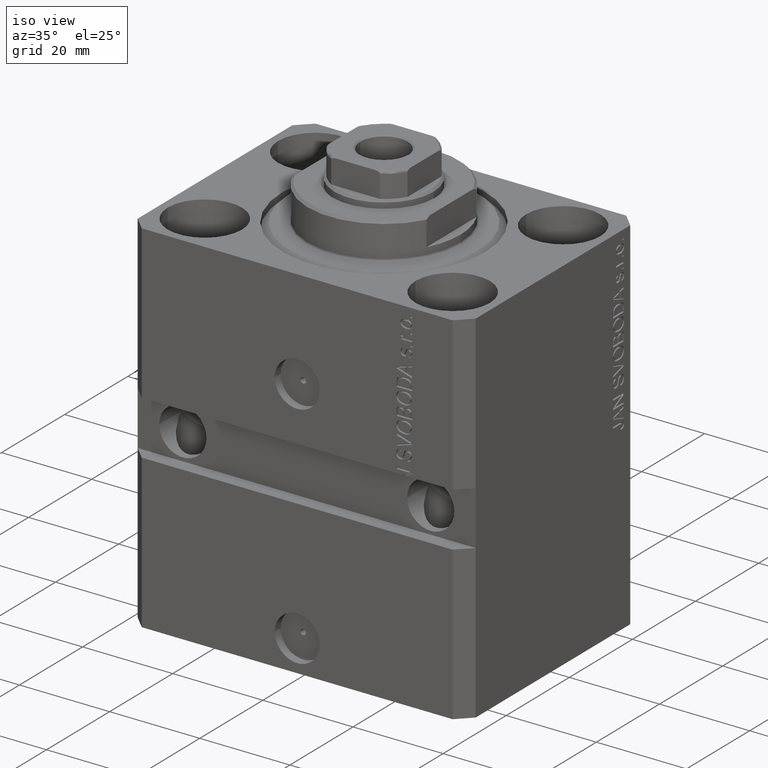
[diagram: clean part render]
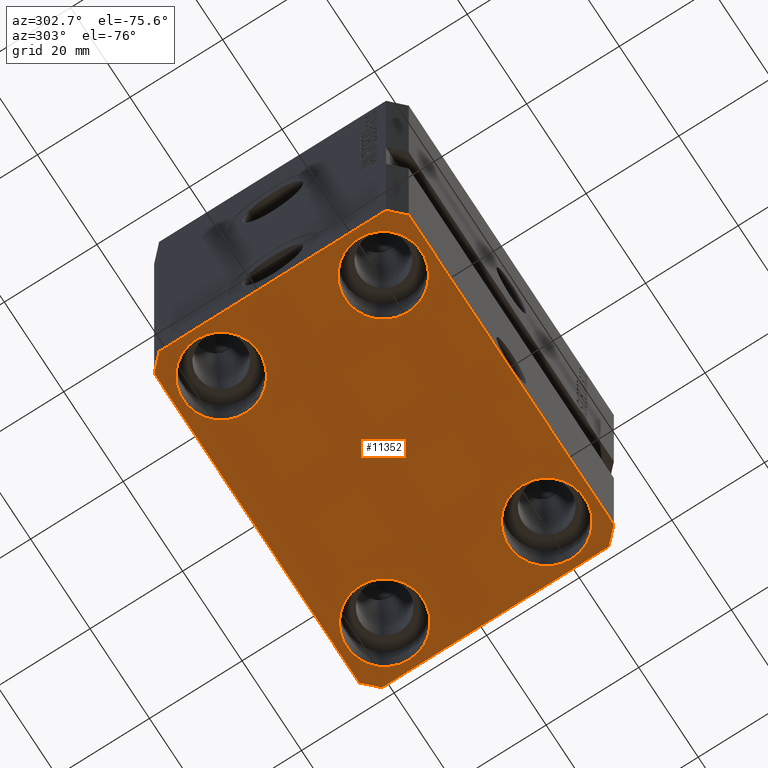
[diagram: tour spotlight — one face highlighted and labeled with its STEP entity id]
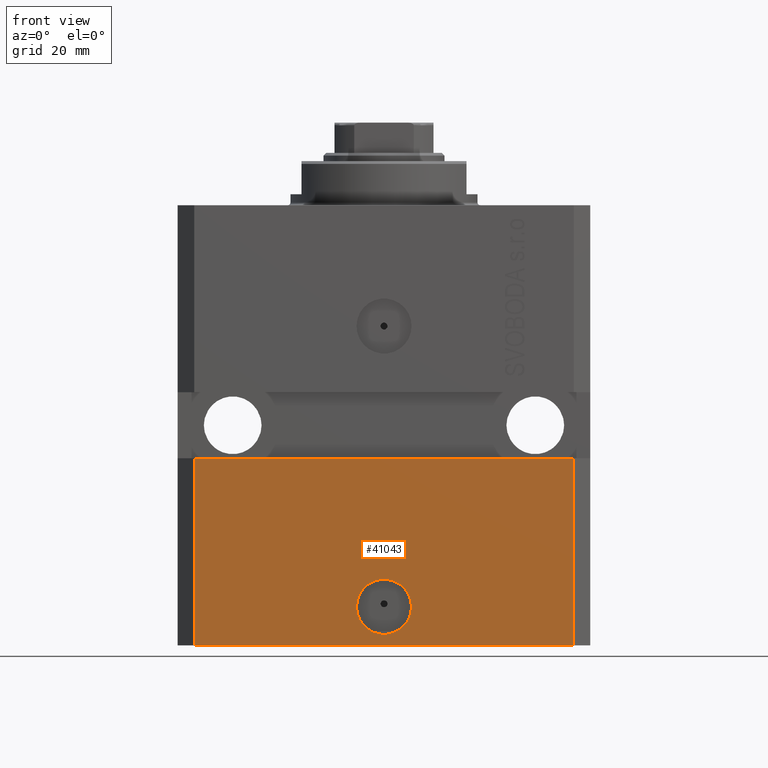
[diagram: tour spotlight — one face highlighted and labeled with its STEP entity id]
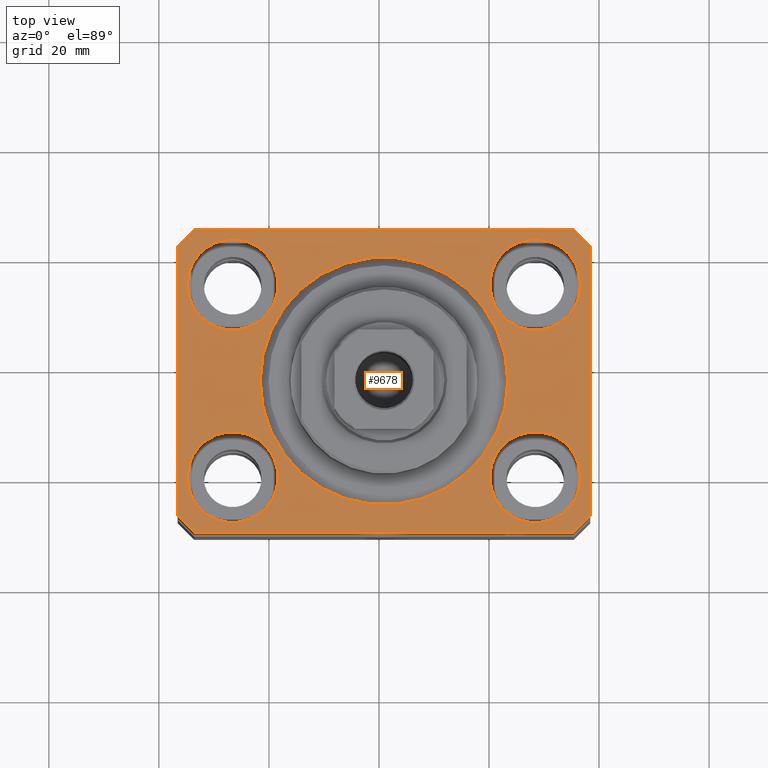
[diagram: tour spotlight — one face highlighted and labeled with its STEP entity id]
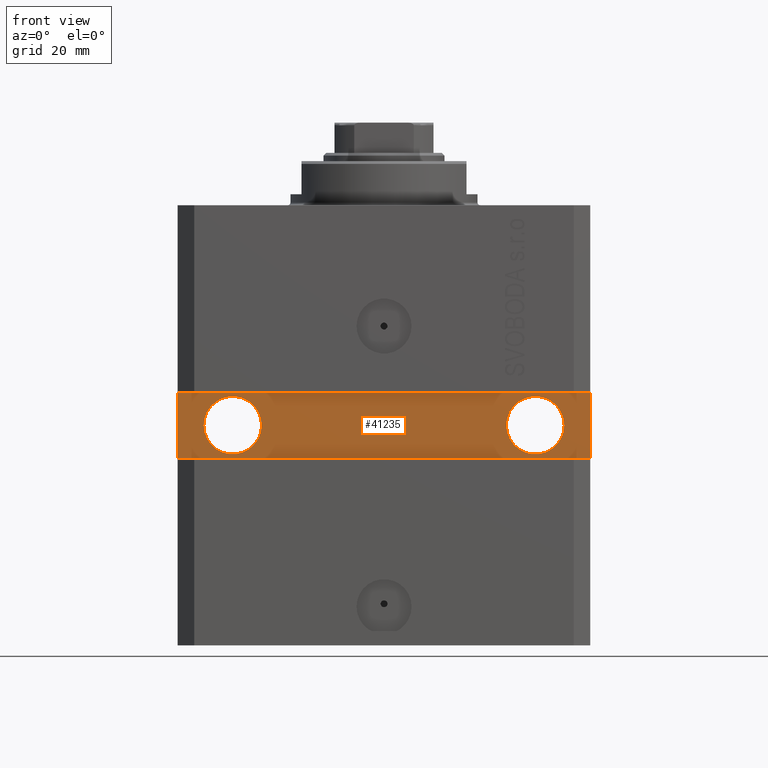
[diagram: tour spotlight — one face highlighted and labeled with its STEP entity id]
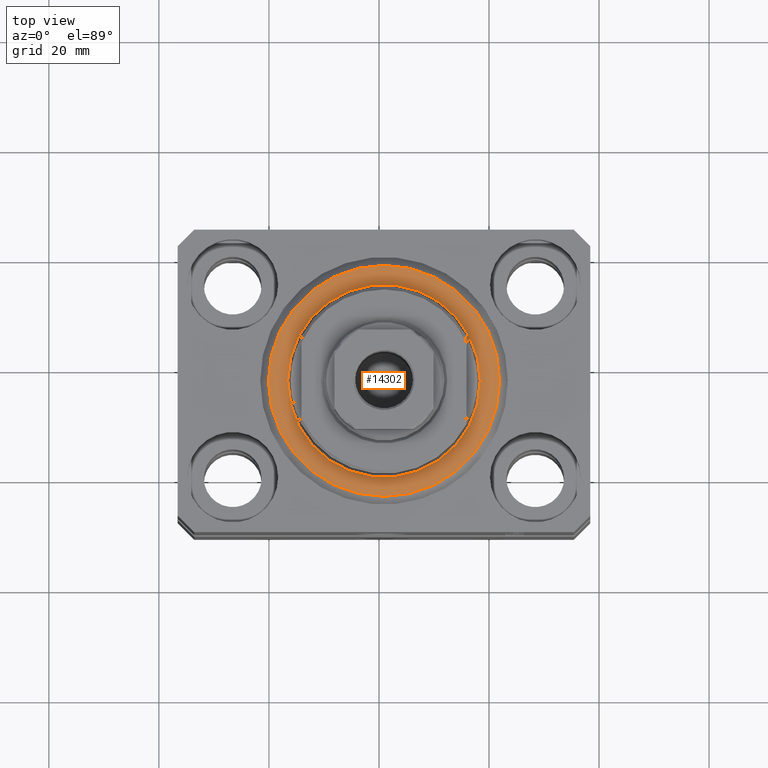
[diagram: tour spotlight — one face highlighted and labeled with its STEP entity id]
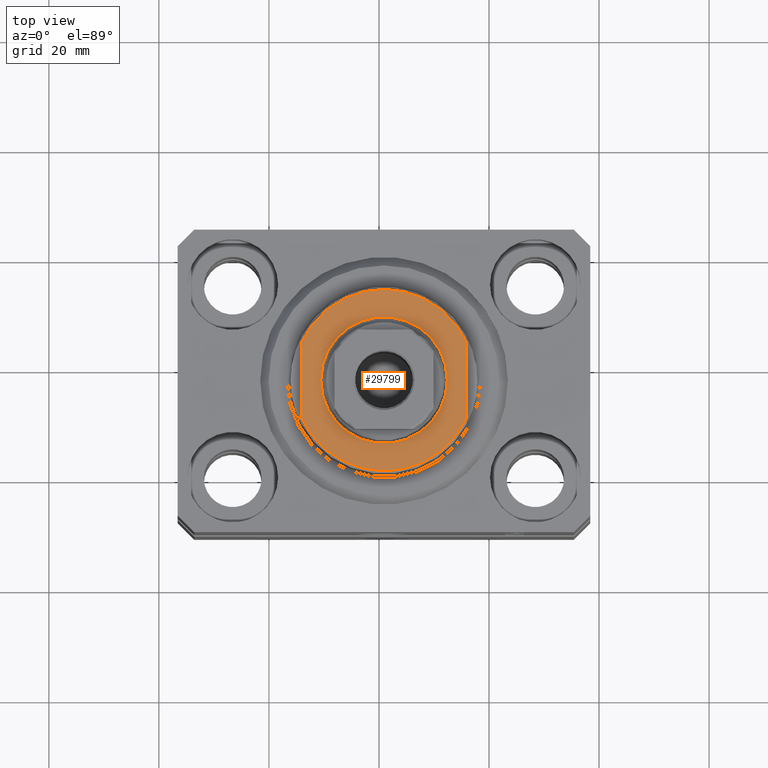
[diagram: tour spotlight — one face highlighted and labeled with its STEP entity id]
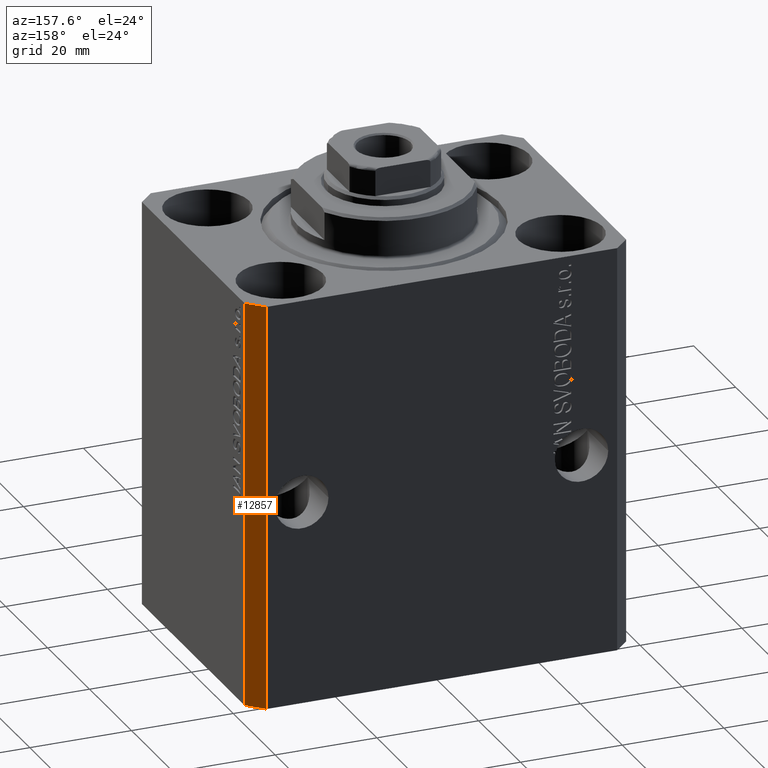
[diagram: tour spotlight — one face highlighted and labeled with its STEP entity id]
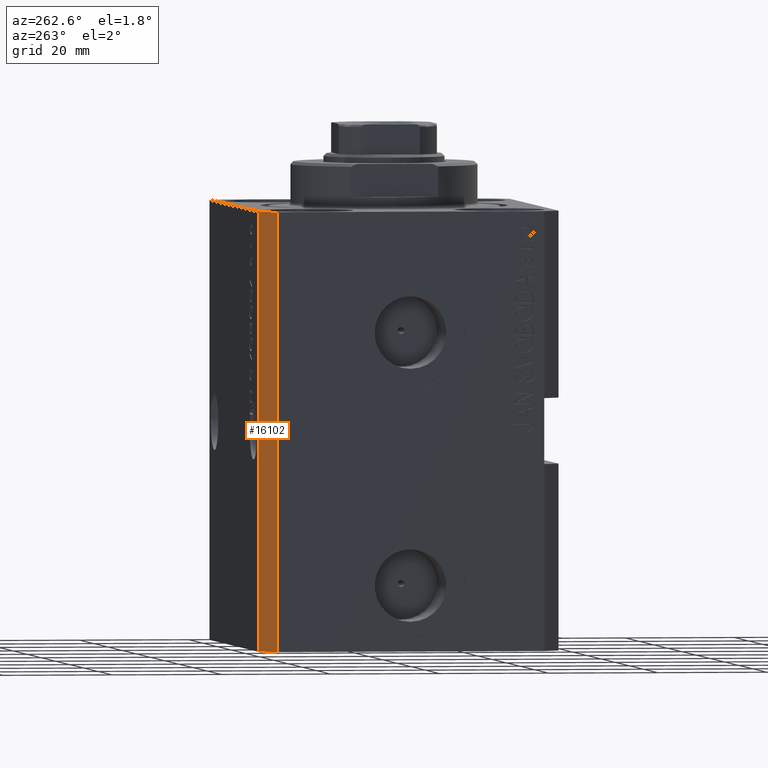
[diagram: tour spotlight — one face highlighted and labeled with its STEP entity id]
A machine part: a face-by-face anatomy tour. The part has 894 B-rep faces; the first image is the clean iso view, then the 8 largest visible faces are spotlighted one at a time (largest first), each with its STEP entity span.

Face 1 — auxiliary view, entity #11352. In plain terms, the highlighted planar face has unit normal (0, 0, 1).
Definition (entity closure, byte-faithful):
#912 = DIRECTION ( 'NONE',  ( 1.000000000000000000, 0.000000000000000000, 0.000000000000000000 ) ) ;
#1038 = EDGE_CURVE ( 'NONE', #40196, #28166, #25176, .T. ) ;
#1048 = CARTESIAN_POINT ( 'NONE',  ( -19.25000000000000355, 17.50000000000000000, -80.00000000000000000 ) ) ;
#1124 = EDGE_CURVE ( 'NONE', #9426, #14309, #36740, .T. ) ;
#1604 = VERTEX_POINT ( 'NONE', #6505 ) ;
#1882 = CARTESIAN_POINT ( 'NONE',  ( 34.50000000000056843, 27.50000000000000000, -80.00000000000000000 ) ) ;
#2239 = CIRCLE ( 'NONE', #35692, 8.250000000000000000 ) ;
#2894 = EDGE_CURVE ( 'NONE', #14309, #39526, #30340, .T. ) ;
#3250 = VECTOR ( 'NONE', #15137, 1000.000000000000114 ) ;
#3271 = DIRECTION ( 'NONE',  ( 0.000000000000000000, 0.000000000000000000, 1.000000000000000000 ) ) ;
#3274 = EDGE_CURVE ( 'NONE', #13441, #27636, #25348, .T. ) ;
#3916 = VERTEX_POINT ( 'NONE', #20252 ) ;
#4401 = CARTESIAN_POINT ( 'NONE',  ( 34.50000000000056843, 27.50000000000000000, -80.00000000000000000 ) ) ;
#5575 = AXIS2_PLACEMENT_3D ( 'NONE', #32922, #3271, #16191 ) ;
#5934 = DIRECTION ( 'NONE',  ( 1.000000000000000000, 0.000000000000000000, 0.000000000000000000 ) ) ;
#6265 = CARTESIAN_POINT ( 'NONE',  ( -35.75000000000000711, 17.50000000000000000, -80.00000000000000000 ) ) ;
#6505 = CARTESIAN_POINT ( 'NONE',  ( 35.74999999999999289, 17.50000000000001066, -80.00000000000000000 ) ) ;
#6524 = CARTESIAN_POINT ( 'NONE',  ( -37.49999999999999289, 24.50000000000000000, -80.00000000000000000 ) ) ;
#6675 = CARTESIAN_POINT ( 'NONE',  ( -34.49999999999999289, 27.50000000000000000, -80.00000000000000000 ) ) ;
#7126 = AXIS2_PLACEMENT_3D ( 'NONE', #36503, #26660, #36281 ) ;
#7306 = VERTEX_POINT ( 'NONE', #26712 ) ;
#7384 = DIRECTION ( 'NONE',  ( 1.000000000000000000, 0.000000000000000000, 0.000000000000000000 ) ) ;
#7541 = VECTOR ( 'NONE', #43960, 1000.000000000000000 ) ;
#7748 = DIRECTION ( 'NONE',  ( -1.000000000000000000, 0.000000000000000000, 0.000000000000000000 ) ) ;
#7929 = CIRCLE ( 'NONE', #37095, 8.250000000000000000 ) ;
#7966 = EDGE_CURVE ( 'NONE', #1604, #22406, #16843, .T. ) ;
#8564 = ORIENTED_EDGE ( 'NONE', *, *, #30275, .T. ) ;
#8633 = DIRECTION ( 'NONE',  ( 1.000000000000000000, 0.000000000000000000, 0.000000000000000000 ) ) ;
#8711 = CIRCLE ( 'NONE', #38522, 8.250000000000000000 ) ;
#9343 = DIRECTION ( 'NONE',  ( -0.7071067811865471286, -0.7071067811865479058, 0.000000000000000000 ) ) ;
#9426 = VERTEX_POINT ( 'NONE', #6675 ) ;
#9925 = ORIENTED_EDGE ( 'NONE', *, *, #29706, .F. ) ;
#10295 = CARTESIAN_POINT ( 'NONE',  ( -27.50000000000000355, 17.50000000000000000, -80.00000000000000000 ) ) ;
#10723 = LINE ( 'NONE', #24319, #26138 ) ;
#10901 = EDGE_LOOP ( 'NONE', ( #19018, #17932 ) ) ;
#11170 = DIRECTION ( 'NONE',  ( -0.000000000000000000, -0.000000000000000000, 1.000000000000000000 ) ) ;
#11352 = ADVANCED_FACE ( 'NONE', ( #16850, #26235, #30222, #15969, #22897 ), #37157, .F. ) ;
#11376 = CARTESIAN_POINT ( 'NONE',  ( 27.50000000000000355, -17.50000000000000000, -80.00000000000000000 ) ) ;
#11557 = VECTOR ( 'NONE', #7748, 1000.000000000000000 ) ;
#11636 = ORIENTED_EDGE ( 'NONE', *, *, #1038, .F. ) ;
#11706 = DIRECTION ( 'NONE',  ( -0.000000000000000000, -0.000000000000000000, 1.000000000000000000 ) ) ;
#13441 = VERTEX_POINT ( 'NONE', #1048 ) ;
#13483 = DIRECTION ( 'NONE',  ( -0.000000000000000000, -0.000000000000000000, 1.000000000000000000 ) ) ;
#14060 = DIRECTION ( 'NONE',  ( 1.000000000000000000, 0.000000000000000000, 0.000000000000000000 ) ) ;
#14309 = VERTEX_POINT ( 'NONE', #19758 ) ;
#14911 = VERTEX_POINT ( 'NONE', #41944 ) ;
#15046 = EDGE_CURVE ( 'NONE', #39526, #14911, #19384, .T. ) ;
#15069 = VECTOR ( 'NONE', #26544, 1000.000000000000000 ) ;
#15137 = DIRECTION ( 'NONE',  ( 0.7071067811865474617, 0.7071067811865474617, 0.000000000000000000 ) ) ;
#15969 = FACE_BOUND ( 'NONE', #39425, .T. ) ;
#16032 = CARTESIAN_POINT ( 'NONE',  ( -37.49999999999999289, -24.50000000000000000, -80.00000000000000000 ) ) ;
#16191 = DIRECTION ( 'NONE',  ( 1.000000000000000000, 0.000000000000000000, -0.000000000000000000 ) ) ;
#16807 = ORIENTED_EDGE ( 'NONE', *, *, #3274, .T. ) ;
#16843 = CIRCLE ( 'NONE', #26210, 8.249999999999992895 ) ;
#16850 = FACE_BOUND ( 'NONE', #30608, .T. ) ;
#16934 = VECTOR ( 'NONE', #19235, 1000.000000000000114 ) ;
#17932 = ORIENTED_EDGE ( 'NONE', *, *, #7966, .T. ) ;
#18408 = LINE ( 'NONE', #4401, #11557 ) ;
#18624 = ORIENTED_EDGE ( 'NONE', *, *, #36234, .F. ) ;
#19018 = ORIENTED_EDGE ( 'NONE', *, *, #40336, .T. ) ;
#19079 = DIRECTION ( 'NONE',  ( -0.000000000000000000, -0.000000000000000000, 1.000000000000000000 ) ) ;
#19235 = DIRECTION ( 'NONE',  ( -0.7071067811865356934, 0.7071067811865594521, 0.000000000000000000 ) ) ;
#19384 = LINE ( 'NONE', #16032, #31968 ) ;
#19639 = AXIS2_PLACEMENT_3D ( 'NONE', #33092, #39571, #5934 ) ;
#19758 = CARTESIAN_POINT ( 'NONE',  ( -37.49999999999999289, 24.50000000000000000, -80.00000000000000000 ) ) ;
#20046 = AXIS2_PLACEMENT_3D ( 'NONE', #10295, #30990, #14060 ) ;
#20169 = EDGE_CURVE ( 'NONE', #35650, #7306, #7929, .T. ) ;
#20252 = CARTESIAN_POINT ( 'NONE',  ( -35.75000000000000711, -17.50000000000000000, -80.00000000000000000 ) ) ;
#20384 = EDGE_CURVE ( 'NONE', #22810, #3916, #2239, .T. ) ;
#20892 = EDGE_CURVE ( 'NONE', #28166, #42765, #29665, .T. ) ;
#21180 = ORIENTED_EDGE ( 'NONE', *, *, #2894, .F. ) ;
#21582 = ORIENTED_EDGE ( 'NONE', *, *, #20892, .F. ) ;
#21871 = AXIS2_PLACEMENT_3D ( 'NONE', #30418, #13483, #27073 ) ;
#22001 = EDGE_CURVE ( 'NONE', #38963, #9426, #18408, .T. ) ;
#22406 = VERTEX_POINT ( 'NONE', #26371 ) ;
#22810 = VERTEX_POINT ( 'NONE', #22984 ) ;
#22897 = FACE_OUTER_BOUND ( 'NONE', #23746, .T. ) ;
#22984 = CARTESIAN_POINT ( 'NONE',  ( -19.25000000000000355, -17.50000000000000000, -80.00000000000000000 ) ) ;
#23342 = ORIENTED_EDGE ( 'NONE', *, *, #20169, .T. ) ;
#23582 = EDGE_CURVE ( 'NONE', #7306, #35650, #8711, .T. ) ;
#23746 = EDGE_LOOP ( 'NONE', ( #43711, #18624, #21582, #11636, #9925, #42712, #21180, #30760 ) ) ;
#24319 = CARTESIAN_POINT ( 'NONE',  ( -34.49999999999998579, -27.49999999999999645, -80.00000000000000000 ) ) ;
#25176 = LINE ( 'NONE', #38775, #3250 ) ;
#25348 = CIRCLE ( 'NONE', #19639, 8.250000000000000000 ) ;
#25440 = CIRCLE ( 'NONE', #21871, 8.250000000000000000 ) ;
#25681 = EDGE_CURVE ( 'NONE', #27636, #13441, #27891, .T. ) ;
#26046 = CARTESIAN_POINT ( 'NONE',  ( -34.49999999999999289, 27.50000000000000000, -80.00000000000000000 ) ) ;
#26138 = VECTOR ( 'NONE', #7384, 1000.000000000000000 ) ;
#26210 = AXIS2_PLACEMENT_3D ( 'NONE', #42370, #11170, #35463 ) ;
#26235 = FACE_BOUND ( 'NONE', #27305, .T. ) ;
#26371 = CARTESIAN_POINT ( 'NONE',  ( 19.25000000000000000, 17.50000000000001066, -80.00000000000000000 ) ) ;
#26544 = DIRECTION ( 'NONE',  ( 1.076236605503979380E-14, 1.000000000000000000, 0.000000000000000000 ) ) ;
#26660 = DIRECTION ( 'NONE',  ( -0.000000000000000000, -0.000000000000000000, 1.000000000000000000 ) ) ;
#26712 = CARTESIAN_POINT ( 'NONE',  ( 19.25000000000000000, -17.50000000000000000, -80.00000000000000000 ) ) ;
#27073 = DIRECTION ( 'NONE',  ( 1.000000000000000000, 0.000000000000000000, 0.000000000000000000 ) ) ;
#27305 = EDGE_LOOP ( 'NONE', ( #43759, #23342 ) ) ;
#27636 = VERTEX_POINT ( 'NONE', #6265 ) ;
#27891 = CIRCLE ( 'NONE', #20046, 8.250000000000000000 ) ;
#28143 = VECTOR ( 'NONE', #9343, 1000.000000000000000 ) ;
#28166 = VERTEX_POINT ( 'NONE', #39157 ) ;
#28562 = CARTESIAN_POINT ( 'NONE',  ( 35.75000000000000711, -17.50000000000000000, -80.00000000000000000 ) ) ;
#28810 = CARTESIAN_POINT ( 'NONE',  ( 37.50000000000051870, 24.49999999999995381, -80.00000000000000000 ) ) ;
#29665 = LINE ( 'NONE', #37247, #15069 ) ;
#29706 = EDGE_CURVE ( 'NONE', #14911, #40196, #10723, .T. ) ;
#29863 = DIRECTION ( 'NONE',  ( 0.7071067811865483499, -0.7071067811865466846, 0.000000000000000000 ) ) ;
#30222 = FACE_BOUND ( 'NONE', #10901, .T. ) ;
#30275 = EDGE_CURVE ( 'NONE', #3916, #22810, #25440, .T. ) ;
#30340 = LINE ( 'NONE', #6524, #7541 ) ;
#30418 = CARTESIAN_POINT ( 'NONE',  ( -27.50000000000000355, -17.50000000000000000, -80.00000000000000000 ) ) ;
#30608 = EDGE_LOOP ( 'NONE', ( #8564, #36125 ) ) ;
#30760 = ORIENTED_EDGE ( 'NONE', *, *, #1124, .F. ) ;
#30990 = DIRECTION ( 'NONE',  ( -0.000000000000000000, -0.000000000000000000, 1.000000000000000000 ) ) ;
#31968 = VECTOR ( 'NONE', #29863, 1000.000000000000000 ) ;
#32256 = CARTESIAN_POINT ( 'NONE',  ( 27.50000000000000355, -17.50000000000000000, -80.00000000000000000 ) ) ;
#32413 = CARTESIAN_POINT ( 'NONE',  ( -27.50000000000000355, -17.50000000000000000, -80.00000000000000000 ) ) ;
#32922 = CARTESIAN_POINT ( 'NONE',  ( 0.000000000000000000, 0.000000000000000000, -80.00000000000000000 ) ) ;
#33092 = CARTESIAN_POINT ( 'NONE',  ( -27.50000000000000355, 17.50000000000000000, -80.00000000000000000 ) ) ;
#35463 = DIRECTION ( 'NONE',  ( 1.000000000000000000, 0.000000000000000000, 0.000000000000000000 ) ) ;
#35650 = VERTEX_POINT ( 'NONE', #28562 ) ;
#35692 = AXIS2_PLACEMENT_3D ( 'NONE', #32413, #11706, #39774 ) ;
#35853 = ORIENTED_EDGE ( 'NONE', *, *, #25681, .T. ) ;
#36125 = ORIENTED_EDGE ( 'NONE', *, *, #20384, .T. ) ;
#36234 = EDGE_CURVE ( 'NONE', #42765, #38963, #39986, .T. ) ;
#36281 = DIRECTION ( 'NONE',  ( 1.000000000000000000, 0.000000000000000000, 0.000000000000000000 ) ) ;
#36503 = CARTESIAN_POINT ( 'NONE',  ( 27.49999999999999645, 17.50000000000001066, -80.00000000000000000 ) ) ;
#36518 = CARTESIAN_POINT ( 'NONE',  ( -37.49999999999999289, -24.50000000000000000, -80.00000000000000000 ) ) ;
#36740 = LINE ( 'NONE', #26046, #28143 ) ;
#37070 = CARTESIAN_POINT ( 'NONE',  ( 37.50000000000051870, 24.49999999999995381, -80.00000000000000000 ) ) ;
#37095 = AXIS2_PLACEMENT_3D ( 'NONE', #32256, #19079, #8633 ) ;
#37157 = PLANE ( 'NONE',  #5575 ) ;
#37247 = CARTESIAN_POINT ( 'NONE',  ( 37.49999999999999289, -24.50000000000000000, -80.00000000000000000 ) ) ;
#37676 = CARTESIAN_POINT ( 'NONE',  ( 34.49999999999999289, -27.49999999999999645, -80.00000000000000000 ) ) ;
#38522 = AXIS2_PLACEMENT_3D ( 'NONE', #11376, #41685, #912 ) ;
#38775 = CARTESIAN_POINT ( 'NONE',  ( 34.49999999999999289, -27.49999999999999645, -80.00000000000000000 ) ) ;
#38963 = VERTEX_POINT ( 'NONE', #1882 ) ;
#39157 = CARTESIAN_POINT ( 'NONE',  ( 37.49999999999999289, -24.50000000000000000, -80.00000000000000000 ) ) ;
#39425 = EDGE_LOOP ( 'NONE', ( #35853, #16807 ) ) ;
#39526 = VERTEX_POINT ( 'NONE', #36518 ) ;
#39571 = DIRECTION ( 'NONE',  ( -0.000000000000000000, -0.000000000000000000, 1.000000000000000000 ) ) ;
#39774 = DIRECTION ( 'NONE',  ( 1.000000000000000000, 0.000000000000000000, 0.000000000000000000 ) ) ;
#39861 = CIRCLE ( 'NONE', #7126, 8.249999999999992895 ) ;
#39986 = LINE ( 'NONE', #37070, #16934 ) ;
#40196 = VERTEX_POINT ( 'NONE', #37676 ) ;
#40336 = EDGE_CURVE ( 'NONE', #22406, #1604, #39861, .T. ) ;
#41685 = DIRECTION ( 'NONE',  ( -0.000000000000000000, -0.000000000000000000, 1.000000000000000000 ) ) ;
#41944 = CARTESIAN_POINT ( 'NONE',  ( -34.49999999999998579, -27.49999999999999645, -80.00000000000000000 ) ) ;
#42370 = CARTESIAN_POINT ( 'NONE',  ( 27.49999999999999645, 17.50000000000001066, -80.00000000000000000 ) ) ;
#42712 = ORIENTED_EDGE ( 'NONE', *, *, #15046, .F. ) ;
#42765 = VERTEX_POINT ( 'NONE', #28810 ) ;
#43711 = ORIENTED_EDGE ( 'NONE', *, *, #22001, .F. ) ;
#43759 = ORIENTED_EDGE ( 'NONE', *, *, #23582, .T. ) ;
#43960 = DIRECTION ( 'NONE',  ( 0.000000000000000000, -1.000000000000000000, 0.000000000000000000 ) ) ;

Face 2 — front view, entity #41043. In plain terms, the highlighted planar face has unit normal (0, -1, 0).
Definition (entity closure, byte-faithful):
#52 = CARTESIAN_POINT ( 'NONE',  ( -34.49999999999998579, -27.49999999999999645, -80.00000000000000000 ) ) ;
#406 = VERTEX_POINT ( 'NONE', #28410 ) ;
#3681 = LINE ( 'NONE', #10352, #31733 ) ;
#4916 = DIRECTION ( 'NONE',  ( 0.000000000000000000, -0.000000000000000000, -1.000000000000000000 ) ) ;
#5161 = ORIENTED_EDGE ( 'NONE', *, *, #26492, .F. ) ;
#6705 = VERTEX_POINT ( 'NONE', #9424 ) ;
#7384 = DIRECTION ( 'NONE',  ( 1.000000000000000000, 0.000000000000000000, 0.000000000000000000 ) ) ;
#7828 = AXIS2_PLACEMENT_3D ( 'NONE', #26376, #19677, #30371 ) ;
#8519 = DIRECTION ( 'NONE',  ( 1.000000000000000000, 0.000000000000000000, 0.000000000000000000 ) ) ;
#9424 = CARTESIAN_POINT ( 'NONE',  ( -5.000000000000006217, -27.49999999999999645, -73.00000000000000000 ) ) ;
#10352 = CARTESIAN_POINT ( 'NONE',  ( -37.50000000000000000, -27.50000000000000000, -46.00000000000000000 ) ) ;
#10723 = LINE ( 'NONE', #24319, #26138 ) ;
#11180 = EDGE_CURVE ( 'NONE', #14911, #24717, #26764, .T. ) ;
#12033 = CARTESIAN_POINT ( 'NONE',  ( 5.000000000000006217, -27.49999999999999645, -73.00000000000000000 ) ) ;
#12099 = CARTESIAN_POINT ( 'NONE',  ( -34.49999999999998579, -27.50000000000000000, -46.00000000000000000 ) ) ;
#12818 = DIRECTION ( 'NONE',  ( 1.000000000000000000, 9.251858538542972814E-17, 0.000000000000000000 ) ) ;
#13552 = LINE ( 'NONE', #17327, #22133 ) ;
#14911 = VERTEX_POINT ( 'NONE', #41944 ) ;
#16751 = EDGE_CURVE ( 'NONE', #21050, #6705, #22774, .T. ) ;
#16940 = VECTOR ( 'NONE', #27425, 1000.000000000000000 ) ;
#17327 = CARTESIAN_POINT ( 'NONE',  ( 34.49999999999999289, -27.49999999999999645, -80.00000000000000000 ) ) ;
#17436 = CARTESIAN_POINT ( 'NONE',  ( -34.49999999999998579, -27.49999999999999645, -80.00000000000000000 ) ) ;
#18479 = DIRECTION ( 'NONE',  ( 0.000000000000000000, -1.000000000000000000, 0.000000000000000000 ) ) ;
#18596 = CIRCLE ( 'NONE', #38525, 5.000000000000006217 ) ;
#19677 = DIRECTION ( 'NONE',  ( 1.176083712526788232E-16, -1.000000000000000000, 0.000000000000000000 ) ) ;
#19715 = EDGE_CURVE ( 'NONE', #6705, #21050, #18596, .T. ) ;
#19822 = EDGE_CURVE ( 'NONE', #40196, #406, #13552, .T. ) ;
#20436 = ORIENTED_EDGE ( 'NONE', *, *, #19822, .T. ) ;
#21050 = VERTEX_POINT ( 'NONE', #12033 ) ;
#21608 = FACE_BOUND ( 'NONE', #34981, .T. ) ;
#22133 = VECTOR ( 'NONE', #30920, 1000.000000000000000 ) ;
#22774 = CIRCLE ( 'NONE', #7828, 5.000000000000006217 ) ;
#23788 = ORIENTED_EDGE ( 'NONE', *, *, #11180, .F. ) ;
#24319 = CARTESIAN_POINT ( 'NONE',  ( -34.49999999999998579, -27.49999999999999645, -80.00000000000000000 ) ) ;
#24717 = VERTEX_POINT ( 'NONE', #12099 ) ;
#26138 = VECTOR ( 'NONE', #7384, 1000.000000000000000 ) ;
#26376 = CARTESIAN_POINT ( 'NONE',  ( 0.000000000000000000, -27.49999999999999645, -73.00000000000000000 ) ) ;
#26492 = EDGE_CURVE ( 'NONE', #24717, #406, #3681, .T. ) ;
#26764 = LINE ( 'NONE', #52, #16940 ) ;
#27425 = DIRECTION ( 'NONE',  ( 0.000000000000000000, 0.000000000000000000, 1.000000000000000000 ) ) ;
#27857 = ORIENTED_EDGE ( 'NONE', *, *, #29706, .T. ) ;
#28410 = CARTESIAN_POINT ( 'NONE',  ( 34.49999999999999289, -27.49999999999999289, -46.00000000000000000 ) ) ;
#28960 = PLANE ( 'NONE',  #33452 ) ;
#29012 = CARTESIAN_POINT ( 'NONE',  ( 0.000000000000000000, -27.49999999999999645, -73.00000000000000000 ) ) ;
#29706 = EDGE_CURVE ( 'NONE', #14911, #40196, #10723, .T. ) ;
#30371 = DIRECTION ( 'NONE',  ( 1.000000000000000000, 0.000000000000000000, 0.000000000000000000 ) ) ;
#30920 = DIRECTION ( 'NONE',  ( 0.000000000000000000, 0.000000000000000000, 1.000000000000000000 ) ) ;
#31733 = VECTOR ( 'NONE', #12818, 1000.000000000000000 ) ;
#33452 = AXIS2_PLACEMENT_3D ( 'NONE', #17436, #18479, #4916 ) ;
#34981 = EDGE_LOOP ( 'NONE', ( #35756, #41499 ) ) ;
#35756 = ORIENTED_EDGE ( 'NONE', *, *, #16751, .F. ) ;
#37676 = CARTESIAN_POINT ( 'NONE',  ( 34.49999999999999289, -27.49999999999999645, -80.00000000000000000 ) ) ;
#38525 = AXIS2_PLACEMENT_3D ( 'NONE', #29012, #43449, #8519 ) ;
#38702 = EDGE_LOOP ( 'NONE', ( #5161, #23788, #27857, #20436 ) ) ;
#39438 = FACE_OUTER_BOUND ( 'NONE', #38702, .T. ) ;
#40196 = VERTEX_POINT ( 'NONE', #37676 ) ;
#41043 = ADVANCED_FACE ( 'NONE', ( #21608, #39438 ), #28960, .T. ) ;
#41499 = ORIENTED_EDGE ( 'NONE', *, *, #19715, .F. ) ;
#41944 = CARTESIAN_POINT ( 'NONE',  ( -34.49999999999998579, -27.49999999999999645, -80.00000000000000000 ) ) ;
#43449 = DIRECTION ( 'NONE',  ( 1.176083712526788232E-16, -1.000000000000000000, 0.000000000000000000 ) ) ;

Face 3 — top view, entity #9678. In plain terms, the highlighted planar face has unit normal (0, 0, 1).
Definition (entity closure, byte-faithful):
#25 = VERTEX_POINT ( 'NONE', #6489 ) ;
#600 = DIRECTION ( 'NONE',  ( 1.000000000000000000, 0.000000000000000000, -0.000000000000000000 ) ) ;
#635 = DIRECTION ( 'NONE',  ( 0.000000000000000000, 0.000000000000000000, 1.000000000000000000 ) ) ;
#710 = AXIS2_PLACEMENT_3D ( 'NONE', #9993, #27565, #37389 ) ;
#888 = EDGE_LOOP ( 'NONE', ( #12291, #8013 ) ) ;
#889 = DIRECTION ( 'NONE',  ( 0.000000000000000000, 0.000000000000000000, 1.000000000000000000 ) ) ;
#1056 = VERTEX_POINT ( 'NONE', #24739 ) ;
#1079 = LINE ( 'NONE', #14644, #18290 ) ;
#1119 = CIRCLE ( 'NONE', #6817, 8.249999999999992895 ) ;
#1258 = CARTESIAN_POINT ( 'NONE',  ( -27.50000000000000355, -17.50000000000000000, 0.000000000000000000 ) ) ;
#1613 = EDGE_CURVE ( 'NONE', #20200, #27859, #1119, .T. ) ;
#1709 = CARTESIAN_POINT ( 'NONE',  ( 37.49999999999999289, -24.50000000000000000, 0.000000000000000000 ) ) ;
#2168 = CARTESIAN_POINT ( 'NONE',  ( -37.49999999999999289, -24.50000000000000000, 0.000000000000000000 ) ) ;
#2931 = ORIENTED_EDGE ( 'NONE', *, *, #41041, .T. ) ;
#2964 = VECTOR ( 'NONE', #37464, 1000.000000000000000 ) ;
#3235 = ORIENTED_EDGE ( 'NONE', *, *, #16200, .F. ) ;
#3998 = EDGE_CURVE ( 'NONE', #41804, #8725, #27473, .T. ) ;
#4125 = VERTEX_POINT ( 'NONE', #26029 ) ;
#4177 = ORIENTED_EDGE ( 'NONE', *, *, #3998, .F. ) ;
#4749 = AXIS2_PLACEMENT_3D ( 'NONE', #25330, #39379, #18638 ) ;
#4783 = CIRCLE ( 'NONE', #4749, 22.50000000000000355 ) ;
#5015 = VERTEX_POINT ( 'NONE', #15785 ) ;
#5059 = CARTESIAN_POINT ( 'NONE',  ( -27.50000000000000355, -17.50000000000000000, 0.000000000000000000 ) ) ;
#5444 = EDGE_CURVE ( 'NONE', #8578, #20216, #4783, .T. ) ;
#5549 = EDGE_CURVE ( 'NONE', #17420, #20007, #12153, .T. ) ;
#5917 = DIRECTION ( 'NONE',  ( -0.7071067811865471286, -0.7071067811865479058, 0.000000000000000000 ) ) ;
#6067 = CARTESIAN_POINT ( 'NONE',  ( 27.49999999999999645, 17.50000000000001066, 0.000000000000000000 ) ) ;
#6489 = CARTESIAN_POINT ( 'NONE',  ( 37.50000000000051870, 24.49999999999995381, 0.000000000000000000 ) ) ;
#6774 = EDGE_CURVE ( 'NONE', #37500, #10417, #36389, .T. ) ;
#6817 = AXIS2_PLACEMENT_3D ( 'NONE', #6067, #26107, #19626 ) ;
#7409 = CARTESIAN_POINT ( 'NONE',  ( -35.75000000000000711, -17.50000000000000000, 0.000000000000000000 ) ) ;
#7558 = VERTEX_POINT ( 'NONE', #14125 ) ;
#7721 = FACE_BOUND ( 'NONE', #888, .T. ) ;
#8013 = ORIENTED_EDGE ( 'NONE', *, *, #33625, .F. ) ;
#8552 = VECTOR ( 'NONE', #35439, 1000.000000000000114 ) ;
#8578 = VERTEX_POINT ( 'NONE', #38232 ) ;
#8725 = VERTEX_POINT ( 'NONE', #26388 ) ;
#9416 = CARTESIAN_POINT ( 'NONE',  ( -35.75000000000000711, 17.50000000000000000, 0.000000000000000000 ) ) ;
#9678 = ADVANCED_FACE ( 'NONE', ( #14388, #41384, #30886, #21289, #7721, #41593 ), #28199, .T. ) ;
#9706 = AXIS2_PLACEMENT_3D ( 'NONE', #41661, #889, #38542 ) ;
#9783 = EDGE_CURVE ( 'NONE', #39101, #5015, #29669, .T. ) ;
#9993 = CARTESIAN_POINT ( 'NONE',  ( -27.50000000000000355, 17.50000000000000000, 0.000000000000000000 ) ) ;
#10055 = ORIENTED_EDGE ( 'NONE', *, *, #1613, .F. ) ;
#10176 = CARTESIAN_POINT ( 'NONE',  ( 19.25000000000000000, 17.50000000000001066, 0.000000000000000000 ) ) ;
#10417 = VERTEX_POINT ( 'NONE', #17781 ) ;
#10481 = EDGE_LOOP ( 'NONE', ( #43110, #29644, #22289, #14346, #41668, #27842, #35866, #2931 ) ) ;
#10498 = CIRCLE ( 'NONE', #35397, 22.50000000000000355 ) ;
#10842 = CARTESIAN_POINT ( 'NONE',  ( 0.000000000000000000, 0.000000000000000000, 0.000000000000000000 ) ) ;
#11507 = DIRECTION ( 'NONE',  ( 0.000000000000000000, 0.000000000000000000, 1.000000000000000000 ) ) ;
#11547 = EDGE_CURVE ( 'NONE', #4125, #25, #14601, .T. ) ;
#11552 = CARTESIAN_POINT ( 'NONE',  ( -34.49999999999999289, 27.50000000000000000, 0.000000000000000000 ) ) ;
#11680 = ORIENTED_EDGE ( 'NONE', *, *, #19888, .F. ) ;
#12153 = LINE ( 'NONE', #35992, #24022 ) ;
#12169 = DIRECTION ( 'NONE',  ( 0.000000000000000000, 0.000000000000000000, 1.000000000000000000 ) ) ;
#12291 = ORIENTED_EDGE ( 'NONE', *, *, #5444, .F. ) ;
#12451 = DIRECTION ( 'NONE',  ( 1.000000000000000000, 0.000000000000000000, 0.000000000000000000 ) ) ;
#12527 = DIRECTION ( 'NONE',  ( 1.000000000000000000, 0.000000000000000000, 0.000000000000000000 ) ) ;
#13597 = CIRCLE ( 'NONE', #17161, 8.250000000000000000 ) ;
#14003 = DIRECTION ( 'NONE',  ( 1.000000000000000000, 0.000000000000000000, 0.000000000000000000 ) ) ;
#14064 = ORIENTED_EDGE ( 'NONE', *, *, #43400, .F. ) ;
#14125 = CARTESIAN_POINT ( 'NONE',  ( 19.25000000000000000, -17.50000000000000000, 0.000000000000000000 ) ) ;
#14346 = ORIENTED_EDGE ( 'NONE', *, *, #33217, .T. ) ;
#14388 = FACE_BOUND ( 'NONE', #34313, .T. ) ;
#14601 = LINE ( 'NONE', #1709, #30464 ) ;
#14644 = CARTESIAN_POINT ( 'NONE',  ( -37.49999999999999289, 24.50000000000000000, 0.000000000000000000 ) ) ;
#15495 = AXIS2_PLACEMENT_3D ( 'NONE', #33396, #19127, #12451 ) ;
#15785 = CARTESIAN_POINT ( 'NONE',  ( -19.25000000000000355, -17.50000000000000000, 0.000000000000000000 ) ) ;
#16037 = ORIENTED_EDGE ( 'NONE', *, *, #36652, .F. ) ;
#16200 = EDGE_CURVE ( 'NONE', #8725, #41804, #16332, .T. ) ;
#16332 = CIRCLE ( 'NONE', #710, 8.250000000000000000 ) ;
#16661 = CARTESIAN_POINT ( 'NONE',  ( 27.49999999999999645, 17.50000000000001066, 0.000000000000000000 ) ) ;
#17161 = AXIS2_PLACEMENT_3D ( 'NONE', #29236, #25676, #32800 ) ;
#17284 = CARTESIAN_POINT ( 'NONE',  ( -22.50000000000000355, 2.755455298081545172E-15, 0.000000000000000000 ) ) ;
#17420 = VERTEX_POINT ( 'NONE', #11552 ) ;
#17781 = CARTESIAN_POINT ( 'NONE',  ( 34.49999999999999289, -27.49999999999999645, 0.000000000000000000 ) ) ;
#18290 = VECTOR ( 'NONE', #28251, 1000.000000000000000 ) ;
#18638 = DIRECTION ( 'NONE',  ( 1.000000000000000000, 0.000000000000000000, 0.000000000000000000 ) ) ;
#19127 = DIRECTION ( 'NONE',  ( 0.000000000000000000, 0.000000000000000000, 1.000000000000000000 ) ) ;
#19626 = DIRECTION ( 'NONE',  ( 1.000000000000000000, 0.000000000000000000, 0.000000000000000000 ) ) ;
#19888 = EDGE_CURVE ( 'NONE', #27859, #20200, #39966, .T. ) ;
#19906 = CARTESIAN_POINT ( 'NONE',  ( 37.50000000000051870, 24.49999999999995381, 0.000000000000000000 ) ) ;
#20007 = VERTEX_POINT ( 'NONE', #42296 ) ;
#20200 = VERTEX_POINT ( 'NONE', #10176 ) ;
#20216 = VERTEX_POINT ( 'NONE', #17284 ) ;
#20974 = EDGE_CURVE ( 'NONE', #1056, #17420, #31201, .T. ) ;
#21162 = CARTESIAN_POINT ( 'NONE',  ( 34.50000000000056843, 27.50000000000000000, 0.000000000000000000 ) ) ;
#21188 = CIRCLE ( 'NONE', #15495, 8.250000000000000000 ) ;
#21289 = FACE_BOUND ( 'NONE', #27511, .T. ) ;
#21325 = DIRECTION ( 'NONE',  ( 1.000000000000000000, 0.000000000000000000, 0.000000000000000000 ) ) ;
#22263 = CARTESIAN_POINT ( 'NONE',  ( 35.74999999999999289, 17.50000000000001066, 0.000000000000000000 ) ) ;
#22289 = ORIENTED_EDGE ( 'NONE', *, *, #32839, .T. ) ;
#22432 = CARTESIAN_POINT ( 'NONE',  ( -34.49999999999998579, -27.49999999999999645, 0.000000000000000000 ) ) ;
#23279 = AXIS2_PLACEMENT_3D ( 'NONE', #10842, #38241, #600 ) ;
#23319 = VECTOR ( 'NONE', #12527, 1000.000000000000000 ) ;
#23459 = EDGE_CURVE ( 'NONE', #23591, #7558, #13597, .T. ) ;
#23560 = CIRCLE ( 'NONE', #43492, 8.250000000000000000 ) ;
#23591 = VERTEX_POINT ( 'NONE', #38567 ) ;
#24022 = VECTOR ( 'NONE', #5917, 1000.000000000000000 ) ;
#24739 = CARTESIAN_POINT ( 'NONE',  ( 34.50000000000056843, 27.50000000000000000, 0.000000000000000000 ) ) ;
#25330 = CARTESIAN_POINT ( 'NONE',  ( 0.000000000000000000, 0.000000000000000000, 0.000000000000000000 ) ) ;
#25676 = DIRECTION ( 'NONE',  ( 0.000000000000000000, 0.000000000000000000, 1.000000000000000000 ) ) ;
#26029 = CARTESIAN_POINT ( 'NONE',  ( 37.49999999999999289, -24.50000000000000000, 0.000000000000000000 ) ) ;
#26107 = DIRECTION ( 'NONE',  ( 0.000000000000000000, 0.000000000000000000, 1.000000000000000000 ) ) ;
#26388 = CARTESIAN_POINT ( 'NONE',  ( -19.25000000000000355, 17.50000000000000000, 0.000000000000000000 ) ) ;
#26423 = AXIS2_PLACEMENT_3D ( 'NONE', #16661, #635, #21325 ) ;
#26829 = AXIS2_PLACEMENT_3D ( 'NONE', #1258, #11507, #27986 ) ;
#27473 = CIRCLE ( 'NONE', #9706, 8.250000000000000000 ) ;
#27511 = EDGE_LOOP ( 'NONE', ( #3235, #4177 ) ) ;
#27561 = CARTESIAN_POINT ( 'NONE',  ( 34.49999999999999289, -27.49999999999999645, 0.000000000000000000 ) ) ;
#27565 = DIRECTION ( 'NONE',  ( 0.000000000000000000, 0.000000000000000000, 1.000000000000000000 ) ) ;
#27842 = ORIENTED_EDGE ( 'NONE', *, *, #30093, .T. ) ;
#27859 = VERTEX_POINT ( 'NONE', #22263 ) ;
#27986 = DIRECTION ( 'NONE',  ( 1.000000000000000000, 0.000000000000000000, 0.000000000000000000 ) ) ;
#28114 = VERTEX_POINT ( 'NONE', #2168 ) ;
#28199 = PLANE ( 'NONE',  #23279 ) ;
#28251 = DIRECTION ( 'NONE',  ( 0.000000000000000000, -1.000000000000000000, 0.000000000000000000 ) ) ;
#28669 = DIRECTION ( 'NONE',  ( 1.000000000000000000, 0.000000000000000000, 0.000000000000000000 ) ) ;
#29059 = ORIENTED_EDGE ( 'NONE', *, *, #23459, .F. ) ;
#29236 = CARTESIAN_POINT ( 'NONE',  ( 27.50000000000000355, -17.50000000000000000, 0.000000000000000000 ) ) ;
#29644 = ORIENTED_EDGE ( 'NONE', *, *, #5549, .T. ) ;
#29669 = CIRCLE ( 'NONE', #26829, 8.250000000000000000 ) ;
#30093 = EDGE_CURVE ( 'NONE', #10417, #4125, #31567, .T. ) ;
#30464 = VECTOR ( 'NONE', #35567, 1000.000000000000000 ) ;
#30885 = LINE ( 'NONE', #37363, #31932 ) ;
#30886 = FACE_BOUND ( 'NONE', #38530, .T. ) ;
#31201 = LINE ( 'NONE', #21162, #2964 ) ;
#31567 = LINE ( 'NONE', #27561, #35401 ) ;
#31932 = VECTOR ( 'NONE', #37810, 1000.000000000000000 ) ;
#32800 = DIRECTION ( 'NONE',  ( 1.000000000000000000, 0.000000000000000000, 0.000000000000000000 ) ) ;
#32839 = EDGE_CURVE ( 'NONE', #20007, #28114, #1079, .T. ) ;
#33217 = EDGE_CURVE ( 'NONE', #28114, #37500, #30885, .T. ) ;
#33396 = CARTESIAN_POINT ( 'NONE',  ( 27.50000000000000355, -17.50000000000000000, 0.000000000000000000 ) ) ;
#33625 = EDGE_CURVE ( 'NONE', #20216, #8578, #10498, .T. ) ;
#34302 = DIRECTION ( 'NONE',  ( 0.000000000000000000, 0.000000000000000000, 1.000000000000000000 ) ) ;
#34313 = EDGE_LOOP ( 'NONE', ( #14064, #41906 ) ) ;
#34953 = CARTESIAN_POINT ( 'NONE',  ( 0.000000000000000000, 0.000000000000000000, 0.000000000000000000 ) ) ;
#35397 = AXIS2_PLACEMENT_3D ( 'NONE', #34953, #34302, #14003 ) ;
#35401 = VECTOR ( 'NONE', #37836, 1000.000000000000114 ) ;
#35439 = DIRECTION ( 'NONE',  ( -0.7071067811865356934, 0.7071067811865594521, 0.000000000000000000 ) ) ;
#35567 = DIRECTION ( 'NONE',  ( 1.076236605503979380E-14, 1.000000000000000000, 0.000000000000000000 ) ) ;
#35866 = ORIENTED_EDGE ( 'NONE', *, *, #11547, .T. ) ;
#35940 = CARTESIAN_POINT ( 'NONE',  ( -34.49999999999998579, -27.49999999999999645, 0.000000000000000000 ) ) ;
#35992 = CARTESIAN_POINT ( 'NONE',  ( -34.49999999999999289, 27.50000000000000000, 0.000000000000000000 ) ) ;
#36389 = LINE ( 'NONE', #35940, #23319 ) ;
#36652 = EDGE_CURVE ( 'NONE', #7558, #23591, #21188, .T. ) ;
#36866 = LINE ( 'NONE', #19906, #8552 ) ;
#37363 = CARTESIAN_POINT ( 'NONE',  ( -37.49999999999999289, -24.50000000000000000, 0.000000000000000000 ) ) ;
#37389 = DIRECTION ( 'NONE',  ( 1.000000000000000000, 0.000000000000000000, 0.000000000000000000 ) ) ;
#37464 = DIRECTION ( 'NONE',  ( -1.000000000000000000, 0.000000000000000000, 0.000000000000000000 ) ) ;
#37500 = VERTEX_POINT ( 'NONE', #22432 ) ;
#37810 = DIRECTION ( 'NONE',  ( 0.7071067811865483499, -0.7071067811865466846, 0.000000000000000000 ) ) ;
#37836 = DIRECTION ( 'NONE',  ( 0.7071067811865474617, 0.7071067811865474617, 0.000000000000000000 ) ) ;
#38232 = CARTESIAN_POINT ( 'NONE',  ( 22.50000000000000355, 0.000000000000000000, 0.000000000000000000 ) ) ;
#38241 = DIRECTION ( 'NONE',  ( 0.000000000000000000, 0.000000000000000000, 1.000000000000000000 ) ) ;
#38438 = EDGE_LOOP ( 'NONE', ( #29059, #16037 ) ) ;
#38530 = EDGE_LOOP ( 'NONE', ( #11680, #10055 ) ) ;
#38542 = DIRECTION ( 'NONE',  ( 1.000000000000000000, 0.000000000000000000, 0.000000000000000000 ) ) ;
#38567 = CARTESIAN_POINT ( 'NONE',  ( 35.75000000000000711, -17.50000000000000000, 0.000000000000000000 ) ) ;
#39101 = VERTEX_POINT ( 'NONE', #7409 ) ;
#39379 = DIRECTION ( 'NONE',  ( 0.000000000000000000, 0.000000000000000000, 1.000000000000000000 ) ) ;
#39966 = CIRCLE ( 'NONE', #26423, 8.249999999999992895 ) ;
#41041 = EDGE_CURVE ( 'NONE', #25, #1056, #36866, .T. ) ;
#41384 = FACE_BOUND ( 'NONE', #38438, .T. ) ;
#41593 = FACE_OUTER_BOUND ( 'NONE', #10481, .T. ) ;
#41661 = CARTESIAN_POINT ( 'NONE',  ( -27.50000000000000355, 17.50000000000000000, 0.000000000000000000 ) ) ;
#41668 = ORIENTED_EDGE ( 'NONE', *, *, #6774, .T. ) ;
#41804 = VERTEX_POINT ( 'NONE', #9416 ) ;
#41906 = ORIENTED_EDGE ( 'NONE', *, *, #9783, .F. ) ;
#42296 = CARTESIAN_POINT ( 'NONE',  ( -37.49999999999999289, 24.50000000000000000, 0.000000000000000000 ) ) ;
#43110 = ORIENTED_EDGE ( 'NONE', *, *, #20974, .T. ) ;
#43400 = EDGE_CURVE ( 'NONE', #5015, #39101, #23560, .T. ) ;
#43492 = AXIS2_PLACEMENT_3D ( 'NONE', #5059, #12169, #28669 ) ;

Face 4 — front view, entity #41235. In plain terms, the highlighted planar face has unit normal (0, -1, 0).
Definition (entity closure, byte-faithful):
#211 = DIRECTION ( 'NONE',  ( 9.251858538542972814E-17, -1.000000000000000000, 0.000000000000000000 ) ) ;
#2060 = CARTESIAN_POINT ( 'NONE',  ( -27.49999999999999289, -24.50000000000000000, -40.00000000000000711 ) ) ;
#2278 = DIRECTION ( 'NONE',  ( 1.000000000000000000, 0.000000000000000000, 0.000000000000000000 ) ) ;
#2508 = EDGE_CURVE ( 'NONE', #39808, #26426, #21240, .T. ) ;
#2516 = CARTESIAN_POINT ( 'NONE',  ( 32.75000000000000000, -24.49999999999999289, -40.00000000000000000 ) ) ;
#2632 = LINE ( 'NONE', #36506, #35474 ) ;
#4984 = EDGE_CURVE ( 'NONE', #18787, #42835, #6185, .T. ) ;
#5507 = AXIS2_PLACEMENT_3D ( 'NONE', #13368, #26961, #33443 ) ;
#6185 = CIRCLE ( 'NONE', #34639, 5.249999999999994671 ) ;
#7551 = ORIENTED_EDGE ( 'NONE', *, *, #36414, .F. ) ;
#8104 = DIRECTION ( 'NONE',  ( -1.000000000000000000, -9.251858538542972814E-17, -1.850371707708594563E-16 ) ) ;
#8116 = ORIENTED_EDGE ( 'NONE', *, *, #30551, .F. ) ;
#8482 = CARTESIAN_POINT ( 'NONE',  ( -22.24999999999999645, -24.50000000000000000, -40.00000000000000711 ) ) ;
#9322 = CIRCLE ( 'NONE', #18559, 5.249999999999994671 ) ;
#10422 = VERTEX_POINT ( 'NONE', #41877 ) ;
#12108 = VERTEX_POINT ( 'NONE', #14940 ) ;
#12288 = ORIENTED_EDGE ( 'NONE', *, *, #19020, .T. ) ;
#12449 = EDGE_CURVE ( 'NONE', #12108, #10422, #2632, .T. ) ;
#12499 = DIRECTION ( 'NONE',  ( 1.101411730780568590E-16, -1.000000000000000000, 0.000000000000000000 ) ) ;
#12525 = DIRECTION ( 'NONE',  ( 0.000000000000000000, 0.000000000000000000, 1.000000000000000000 ) ) ;
#12790 = ORIENTED_EDGE ( 'NONE', *, *, #12449, .T. ) ;
#13198 = ORIENTED_EDGE ( 'NONE', *, *, #2508, .T. ) ;
#13368 = CARTESIAN_POINT ( 'NONE',  ( -27.49999999999999289, -24.50000000000000000, -40.00000000000000711 ) ) ;
#14216 = CARTESIAN_POINT ( 'NONE',  ( 2.191435984341280931E-15, -24.49999999999999645, 0.000000000000000000 ) ) ;
#14224 = LINE ( 'NONE', #34078, #32099 ) ;
#14257 = EDGE_LOOP ( 'NONE', ( #31414, #42889 ) ) ;
#14528 = CARTESIAN_POINT ( 'NONE',  ( -32.74999999999999289, -24.50000000000000000, -40.00000000000000711 ) ) ;
#14907 = CARTESIAN_POINT ( 'NONE',  ( 27.50000000000000711, -24.49999999999999289, -40.00000000000000000 ) ) ;
#14940 = CARTESIAN_POINT ( 'NONE',  ( -37.50000000000000000, -24.50000000000000000, -46.00000000000000000 ) ) ;
#16925 = VERTEX_POINT ( 'NONE', #14528 ) ;
#17119 = PLANE ( 'NONE',  #34852 ) ;
#18168 = VECTOR ( 'NONE', #8104, 1000.000000000000000 ) ;
#18559 = AXIS2_PLACEMENT_3D ( 'NONE', #19477, #39559, #43128 ) ;
#18670 = EDGE_CURVE ( 'NONE', #42835, #18787, #9322, .T. ) ;
#18787 = VERTEX_POINT ( 'NONE', #44010 ) ;
#18895 = VERTEX_POINT ( 'NONE', #8482 ) ;
#19020 = EDGE_CURVE ( 'NONE', #26426, #12108, #14224, .T. ) ;
#19477 = CARTESIAN_POINT ( 'NONE',  ( 27.50000000000000711, -24.49999999999999289, -40.00000000000000000 ) ) ;
#20239 = DIRECTION ( 'NONE',  ( 0.000000000000000000, 0.000000000000000000, -1.000000000000000000 ) ) ;
#20678 = FACE_OUTER_BOUND ( 'NONE', #32303, .T. ) ;
#20899 = FACE_BOUND ( 'NONE', #23415, .T. ) ;
#20930 = DIRECTION ( 'NONE',  ( 1.171720209325604191E-16, -1.000000000000000000, 0.000000000000000000 ) ) ;
#21240 = LINE ( 'NONE', #38641, #18168 ) ;
#23415 = EDGE_LOOP ( 'NONE', ( #7551, #8116 ) ) ;
#24262 = FACE_BOUND ( 'NONE', #14257, .T. ) ;
#25608 = EDGE_CURVE ( 'NONE', #10422, #39808, #39958, .T. ) ;
#26426 = VERTEX_POINT ( 'NONE', #29750 ) ;
#26961 = DIRECTION ( 'NONE',  ( 1.101411730780568590E-16, -1.000000000000000000, 0.000000000000000000 ) ) ;
#29750 = CARTESIAN_POINT ( 'NONE',  ( -37.50000000000000000, -24.50000000000000000, -34.00000000000000000 ) ) ;
#30551 = EDGE_CURVE ( 'NONE', #16925, #18895, #43932, .T. ) ;
#31414 = ORIENTED_EDGE ( 'NONE', *, *, #18670, .F. ) ;
#32099 = VECTOR ( 'NONE', #20239, 1000.000000000000000 ) ;
#32302 = ORIENTED_EDGE ( 'NONE', *, *, #25608, .T. ) ;
#32303 = EDGE_LOOP ( 'NONE', ( #12790, #32302, #13198, #12288 ) ) ;
#33443 = DIRECTION ( 'NONE',  ( 1.000000000000000000, 0.000000000000000000, 0.000000000000000000 ) ) ;
#33590 = VECTOR ( 'NONE', #12525, 1000.000000000000000 ) ;
#34078 = CARTESIAN_POINT ( 'NONE',  ( -37.50000000000000000, -24.50000000000000000, -34.00000000000000000 ) ) ;
#34639 = AXIS2_PLACEMENT_3D ( 'NONE', #14907, #20930, #41252 ) ;
#34852 = AXIS2_PLACEMENT_3D ( 'NONE', #14216, #211, #37859 ) ;
#35474 = VECTOR ( 'NONE', #42979, 1000.000000000000000 ) ;
#36414 = EDGE_CURVE ( 'NONE', #18895, #16925, #41869, .T. ) ;
#36506 = CARTESIAN_POINT ( 'NONE',  ( -37.50000000000000000, -24.50000000000000000, -46.00000000000000000 ) ) ;
#36821 = CARTESIAN_POINT ( 'NONE',  ( 37.49999999999999289, -24.49999999999999289, -46.00000000000000000 ) ) ;
#37859 = DIRECTION ( 'NONE',  ( 1.000000000000000000, 9.251858538542972814E-17, 0.000000000000000000 ) ) ;
#38641 = CARTESIAN_POINT ( 'NONE',  ( 37.49999999999999289, -24.49999999999999289, -33.99999999999998579 ) ) ;
#39559 = DIRECTION ( 'NONE',  ( 1.171720209325604191E-16, -1.000000000000000000, 0.000000000000000000 ) ) ;
#39808 = VERTEX_POINT ( 'NONE', #40860 ) ;
#39958 = LINE ( 'NONE', #36821, #33590 ) ;
#40443 = AXIS2_PLACEMENT_3D ( 'NONE', #2060, #12499, #2278 ) ;
#40860 = CARTESIAN_POINT ( 'NONE',  ( 37.49999999999999289, -24.49999999999999289, -33.99999999999998579 ) ) ;
#41235 = ADVANCED_FACE ( 'NONE', ( #24262, #20899, #20678 ), #17119, .T. ) ;
#41252 = DIRECTION ( 'NONE',  ( 1.000000000000000000, 0.000000000000000000, 0.000000000000000000 ) ) ;
#41869 = CIRCLE ( 'NONE', #40443, 5.249999999999997335 ) ;
#41877 = CARTESIAN_POINT ( 'NONE',  ( 37.49999999999999289, -24.49999999999999289, -46.00000000000000000 ) ) ;
#42835 = VERTEX_POINT ( 'NONE', #2516 ) ;
#42889 = ORIENTED_EDGE ( 'NONE', *, *, #4984, .F. ) ;
#42979 = DIRECTION ( 'NONE',  ( 1.000000000000000000, 9.251858538542972814E-17, 0.000000000000000000 ) ) ;
#43128 = DIRECTION ( 'NONE',  ( 1.000000000000000000, 0.000000000000000000, 0.000000000000000000 ) ) ;
#43932 = CIRCLE ( 'NONE', #5507, 5.249999999999997335 ) ;
#44010 = CARTESIAN_POINT ( 'NONE',  ( 22.25000000000001421, -24.49999999999999289, -40.00000000000000000 ) ) ;

Face 5 — top view, entity #14302. In plain terms, the highlighted planar face has unit normal (0, 0, -1).
Definition (entity closure, byte-faithful):
#730 = VERTEX_POINT ( 'NONE', #4517 ) ;
#3518 = EDGE_LOOP ( 'NONE', ( #25260, #20489 ) ) ;
#4300 = DIRECTION ( 'NONE',  ( 1.000000000000000000, 0.000000000000000000, 0.000000000000000000 ) ) ;
#4517 = CARTESIAN_POINT ( 'NONE',  ( 20.99999999999998934, 0.000000000000000000, 0.000000000000000000 ) ) ;
#4602 = EDGE_CURVE ( 'NONE', #8881, #730, #11161, .T. ) ;
#5477 = CIRCLE ( 'NONE', #41779, 17.50000000000000000 ) ;
#5617 = ORIENTED_EDGE ( 'NONE', *, *, #4602, .T. ) ;
#6156 = CARTESIAN_POINT ( 'NONE',  ( 0.000000000000000000, 0.000000000000000000, 0.000000000000000000 ) ) ;
#6343 = AXIS2_PLACEMENT_3D ( 'NONE', #29807, #43423, #9977 ) ;
#8640 = EDGE_CURVE ( 'NONE', #16398, #15720, #5477, .T. ) ;
#8881 = VERTEX_POINT ( 'NONE', #30615 ) ;
#9977 = DIRECTION ( 'NONE',  ( 1.000000000000000000, 0.000000000000000000, -0.000000000000000000 ) ) ;
#11161 = CIRCLE ( 'NONE', #23951, 20.99999999999998934 ) ;
#11431 = DIRECTION ( 'NONE',  ( -0.000000000000000000, -0.000000000000000000, -1.000000000000000000 ) ) ;
#14302 = ADVANCED_FACE ( 'NONE', ( #19537, #40516 ), #16199, .F. ) ;
#15720 = VERTEX_POINT ( 'NONE', #28993 ) ;
#16199 = PLANE ( 'NONE',  #6343 ) ;
#16398 = VERTEX_POINT ( 'NONE', #19697 ) ;
#18561 = DIRECTION ( 'NONE',  ( 1.000000000000000000, 0.000000000000000000, 0.000000000000000000 ) ) ;
#18599 = DIRECTION ( 'NONE',  ( 1.000000000000000000, 0.000000000000000000, 0.000000000000000000 ) ) ;
#19537 = FACE_BOUND ( 'NONE', #3518, .T. ) ;
#19697 = CARTESIAN_POINT ( 'NONE',  ( 17.50000000000000000, 0.000000000000000000, -2.168404344971008868E-16 ) ) ;
#20078 = CIRCLE ( 'NONE', #29260, 20.99999999999998934 ) ;
#20489 = ORIENTED_EDGE ( 'NONE', *, *, #38058, .T. ) ;
#23361 = EDGE_CURVE ( 'NONE', #730, #8881, #20078, .T. ) ;
#23951 = AXIS2_PLACEMENT_3D ( 'NONE', #6156, #43156, #43807 ) ;
#25260 = ORIENTED_EDGE ( 'NONE', *, *, #8640, .T. ) ;
#25291 = CARTESIAN_POINT ( 'NONE',  ( 0.000000000000000000, 0.000000000000000000, 0.000000000000000000 ) ) ;
#27922 = CARTESIAN_POINT ( 'NONE',  ( 0.000000000000000000, 0.000000000000000000, 0.000000000000000000 ) ) ;
#28401 = AXIS2_PLACEMENT_3D ( 'NONE', #38193, #38418, #18561 ) ;
#28993 = CARTESIAN_POINT ( 'NONE',  ( -17.50000000000000000, 2.143131898507868643E-15, -2.168404344971008868E-16 ) ) ;
#29260 = AXIS2_PLACEMENT_3D ( 'NONE', #27922, #11431, #4300 ) ;
#29807 = CARTESIAN_POINT ( 'NONE',  ( 0.000000000000000000, 0.000000000000000000, 0.000000000000000000 ) ) ;
#30615 = CARTESIAN_POINT ( 'NONE',  ( -20.99999999999998934, 2.663606788145492628E-15, 0.000000000000000000 ) ) ;
#35557 = DIRECTION ( 'NONE',  ( 0.000000000000000000, 0.000000000000000000, 1.000000000000000000 ) ) ;
#38058 = EDGE_CURVE ( 'NONE', #15720, #16398, #38355, .T. ) ;
#38193 = CARTESIAN_POINT ( 'NONE',  ( 0.000000000000000000, 0.000000000000000000, 0.000000000000000000 ) ) ;
#38355 = CIRCLE ( 'NONE', #28401, 17.50000000000000000 ) ;
#38418 = DIRECTION ( 'NONE',  ( 0.000000000000000000, 0.000000000000000000, 1.000000000000000000 ) ) ;
#40249 = ORIENTED_EDGE ( 'NONE', *, *, #23361, .T. ) ;
#40516 = FACE_OUTER_BOUND ( 'NONE', #43608, .T. ) ;
#41779 = AXIS2_PLACEMENT_3D ( 'NONE', #25291, #35557, #18599 ) ;
#43156 = DIRECTION ( 'NONE',  ( -0.000000000000000000, -0.000000000000000000, -1.000000000000000000 ) ) ;
#43423 = DIRECTION ( 'NONE',  ( 0.000000000000000000, 0.000000000000000000, 1.000000000000000000 ) ) ;
#43608 = EDGE_LOOP ( 'NONE', ( #40249, #5617 ) ) ;
#43807 = DIRECTION ( 'NONE',  ( 1.000000000000000000, 0.000000000000000000, 0.000000000000000000 ) ) ;

Face 6 — top view, entity #29799. In plain terms, the highlighted planar face has unit normal (0, 0, 1).
Definition (entity closure, byte-faithful):
#489 = EDGE_CURVE ( 'NONE', #11073, #15212, #5353, .T. ) ;
#1503 = DIRECTION ( 'NONE',  ( -0.000000000000000000, -0.000000000000000000, 1.000000000000000000 ) ) ;
#2998 = VECTOR ( 'NONE', #17921, 1000.000000000000000 ) ;
#3129 = DIRECTION ( 'NONE',  ( -0.000000000000000000, -1.000000000000000000, -0.000000000000000000 ) ) ;
#4100 = AXIS2_PLACEMENT_3D ( 'NONE', #42144, #11380, #18481 ) ;
#4687 = FACE_OUTER_BOUND ( 'NONE', #19838, .T. ) ;
#5353 = CIRCLE ( 'NONE', #30241, 16.50000000000000000 ) ;
#6153 = VERTEX_POINT ( 'NONE', #43414 ) ;
#7692 = CARTESIAN_POINT ( 'NONE',  ( 15.00000000000000000, -42.42640687119285303, -8.000000000000000000 ) ) ;
#9226 = CARTESIAN_POINT ( 'NONE',  ( 0.000000000000000000, 0.000000000000000000, -8.000000000000000000 ) ) ;
#10750 = AXIS2_PLACEMENT_3D ( 'NONE', #22196, #1503, #18830 ) ;
#11024 = VERTEX_POINT ( 'NONE', #34412 ) ;
#11073 = VERTEX_POINT ( 'NONE', #29888 ) ;
#11380 = DIRECTION ( 'NONE',  ( 0.000000000000000000, 0.000000000000000000, -1.000000000000000000 ) ) ;
#12351 = DIRECTION ( 'NONE',  ( 0.000000000000000000, 0.000000000000000000, -1.000000000000000000 ) ) ;
#12470 = CARTESIAN_POINT ( 'NONE',  ( 11.50000000000000355, 1.408343819019456570E-15, -8.000000000000000000 ) ) ;
#13369 = CIRCLE ( 'NONE', #24772, 11.50000000000000355 ) ;
#13399 = CIRCLE ( 'NONE', #38326, 16.50000000000000000 ) ;
#13585 = ORIENTED_EDGE ( 'NONE', *, *, #36792, .T. ) ;
#14145 = LINE ( 'NONE', #7692, #2998 ) ;
#15212 = VERTEX_POINT ( 'NONE', #31612 ) ;
#15765 = EDGE_CURVE ( 'NONE', #6153, #15212, #22300, .T. ) ;
#16330 = ORIENTED_EDGE ( 'NONE', *, *, #15765, .F. ) ;
#17921 = DIRECTION ( 'NONE',  ( 0.000000000000000000, -1.000000000000000000, -0.000000000000000000 ) ) ;
#18481 = DIRECTION ( 'NONE',  ( -1.000000000000000000, 0.000000000000000000, -0.000000000000000000 ) ) ;
#18830 = DIRECTION ( 'NONE',  ( -1.000000000000000000, 0.000000000000000000, 0.000000000000000000 ) ) ;
#18930 = VERTEX_POINT ( 'NONE', #12470 ) ;
#19597 = CARTESIAN_POINT ( 'NONE',  ( -15.00000000000000000, -42.42640687119285303, -8.000000000000000000 ) ) ;
#19838 = EDGE_LOOP ( 'NONE', ( #13585, #43838, #32933, #16330 ) ) ;
#21096 = DIRECTION ( 'NONE',  ( 0.000000000000000000, 0.000000000000000000, -1.000000000000000000 ) ) ;
#21199 = EDGE_LOOP ( 'NONE', ( #32252, #39530 ) ) ;
#21610 = PLANE ( 'NONE',  #4100 ) ;
#22196 = CARTESIAN_POINT ( 'NONE',  ( 0.000000000000000000, 0.000000000000000000, -8.000000000000000000 ) ) ;
#22300 = LINE ( 'NONE', #19597, #25569 ) ;
#22343 = EDGE_CURVE ( 'NONE', #11024, #11073, #14145, .T. ) ;
#23028 = CARTESIAN_POINT ( 'NONE',  ( 0.000000000000000000, 0.000000000000000000, -8.000000000000000000 ) ) ;
#24772 = AXIS2_PLACEMENT_3D ( 'NONE', #23028, #33047, #33273 ) ;
#25335 = CARTESIAN_POINT ( 'NONE',  ( 0.000000000000000000, 0.000000000000000000, -8.000000000000000000 ) ) ;
#25569 = VECTOR ( 'NONE', #3129, 1000.000000000000000 ) ;
#25979 = VERTEX_POINT ( 'NONE', #34955 ) ;
#29799 = ADVANCED_FACE ( 'NONE', ( #32097, #4687 ), #21610, .T. ) ;
#29888 = CARTESIAN_POINT ( 'NONE',  ( 14.99999999999999645, -6.873863542433765517, -8.000000000000000000 ) ) ;
#30241 = AXIS2_PLACEMENT_3D ( 'NONE', #9226, #12351, #36633 ) ;
#31612 = CARTESIAN_POINT ( 'NONE',  ( -14.99999999999999645, -6.873863542433765517, -8.000000000000000000 ) ) ;
#32097 = FACE_BOUND ( 'NONE', #21199, .T. ) ;
#32252 = ORIENTED_EDGE ( 'NONE', *, *, #43507, .T. ) ;
#32933 = ORIENTED_EDGE ( 'NONE', *, *, #489, .T. ) ;
#33047 = DIRECTION ( 'NONE',  ( -0.000000000000000000, -0.000000000000000000, 1.000000000000000000 ) ) ;
#33273 = DIRECTION ( 'NONE',  ( -1.000000000000000000, 0.000000000000000000, 0.000000000000000000 ) ) ;
#34412 = CARTESIAN_POINT ( 'NONE',  ( 14.99999999999999645, 6.873863542433765517, -8.000000000000000000 ) ) ;
#34955 = CARTESIAN_POINT ( 'NONE',  ( -11.50000000000000355, 0.000000000000000000, -8.000000000000000000 ) ) ;
#35458 = EDGE_CURVE ( 'NONE', #18930, #25979, #13369, .T. ) ;
#36633 = DIRECTION ( 'NONE',  ( -1.000000000000000000, 0.000000000000000000, 0.000000000000000000 ) ) ;
#36792 = EDGE_CURVE ( 'NONE', #6153, #11024, #13399, .T. ) ;
#38326 = AXIS2_PLACEMENT_3D ( 'NONE', #25335, #21096, #41625 ) ;
#39530 = ORIENTED_EDGE ( 'NONE', *, *, #35458, .T. ) ;
#41365 = CIRCLE ( 'NONE', #10750, 11.50000000000000355 ) ;
#41625 = DIRECTION ( 'NONE',  ( -1.000000000000000000, 0.000000000000000000, 0.000000000000000000 ) ) ;
#42144 = CARTESIAN_POINT ( 'NONE',  ( 0.000000000000000000, 0.000000000000000000, -8.000000000000000000 ) ) ;
#43414 = CARTESIAN_POINT ( 'NONE',  ( -14.99999999999999645, 6.873863542433765517, -8.000000000000000000 ) ) ;
#43507 = EDGE_CURVE ( 'NONE', #25979, #18930, #41365, .T. ) ;
#43838 = ORIENTED_EDGE ( 'NONE', *, *, #22343, .T. ) ;

Face 7 — auxiliary view, entity #12857. In plain terms, the highlighted planar face has unit normal (0.7071, 0.7071, 0).
Definition (entity closure, byte-faithful):
#25 = VERTEX_POINT ( 'NONE', #6489 ) ;
#65 = DIRECTION ( 'NONE',  ( 0.7071067811865594521, 0.7071067811865356934, -0.000000000000000000 ) ) ;
#214 = CARTESIAN_POINT ( 'NONE',  ( 34.50000000000056843, 27.50000000000000000, -80.00000000000000000 ) ) ;
#1056 = VERTEX_POINT ( 'NONE', #24739 ) ;
#1882 = CARTESIAN_POINT ( 'NONE',  ( 34.50000000000056843, 27.50000000000000000, -80.00000000000000000 ) ) ;
#4290 = VECTOR ( 'NONE', #36977, 1000.000000000000000 ) ;
#6489 = CARTESIAN_POINT ( 'NONE',  ( 37.50000000000051870, 24.49999999999995381, 0.000000000000000000 ) ) ;
#7613 = PLANE ( 'NONE',  #21947 ) ;
#8552 = VECTOR ( 'NONE', #35439, 1000.000000000000114 ) ;
#10304 = DIRECTION ( 'NONE',  ( -0.7071067811865356934, 0.7071067811865594521, 0.000000000000000000 ) ) ;
#10749 = CARTESIAN_POINT ( 'NONE',  ( 37.50000000000051870, 24.49999999999995381, -80.00000000000000000 ) ) ;
#11734 = ORIENTED_EDGE ( 'NONE', *, *, #18207, .T. ) ;
#12857 = ADVANCED_FACE ( 'NONE', ( #24548 ), #7613, .T. ) ;
#12905 = VECTOR ( 'NONE', #28480, 1000.000000000000000 ) ;
#14878 = CARTESIAN_POINT ( 'NONE',  ( 37.50000000000051870, 24.49999999999995381, -80.00000000000000000 ) ) ;
#16934 = VECTOR ( 'NONE', #19235, 1000.000000000000114 ) ;
#16987 = ORIENTED_EDGE ( 'NONE', *, *, #36234, .T. ) ;
#18201 = LINE ( 'NONE', #14878, #12905 ) ;
#18207 = EDGE_CURVE ( 'NONE', #38963, #1056, #19799, .T. ) ;
#19235 = DIRECTION ( 'NONE',  ( -0.7071067811865356934, 0.7071067811865594521, 0.000000000000000000 ) ) ;
#19799 = LINE ( 'NONE', #214, #4290 ) ;
#19906 = CARTESIAN_POINT ( 'NONE',  ( 37.50000000000051870, 24.49999999999995381, 0.000000000000000000 ) ) ;
#20551 = ORIENTED_EDGE ( 'NONE', *, *, #41041, .F. ) ;
#21947 = AXIS2_PLACEMENT_3D ( 'NONE', #10749, #65, #10304 ) ;
#24548 = FACE_OUTER_BOUND ( 'NONE', #32518, .T. ) ;
#24739 = CARTESIAN_POINT ( 'NONE',  ( 34.50000000000056843, 27.50000000000000000, 0.000000000000000000 ) ) ;
#25275 = EDGE_CURVE ( 'NONE', #42765, #25, #18201, .T. ) ;
#28480 = DIRECTION ( 'NONE',  ( 0.000000000000000000, 0.000000000000000000, 1.000000000000000000 ) ) ;
#28810 = CARTESIAN_POINT ( 'NONE',  ( 37.50000000000051870, 24.49999999999995381, -80.00000000000000000 ) ) ;
#29770 = ORIENTED_EDGE ( 'NONE', *, *, #25275, .F. ) ;
#32518 = EDGE_LOOP ( 'NONE', ( #20551, #29770, #16987, #11734 ) ) ;
#35439 = DIRECTION ( 'NONE',  ( -0.7071067811865356934, 0.7071067811865594521, 0.000000000000000000 ) ) ;
#36234 = EDGE_CURVE ( 'NONE', #42765, #38963, #39986, .T. ) ;
#36866 = LINE ( 'NONE', #19906, #8552 ) ;
#36977 = DIRECTION ( 'NONE',  ( 0.000000000000000000, 0.000000000000000000, 1.000000000000000000 ) ) ;
#37070 = CARTESIAN_POINT ( 'NONE',  ( 37.50000000000051870, 24.49999999999995381, -80.00000000000000000 ) ) ;
#38963 = VERTEX_POINT ( 'NONE', #1882 ) ;
#39986 = LINE ( 'NONE', #37070, #16934 ) ;
#41041 = EDGE_CURVE ( 'NONE', #25, #1056, #36866, .T. ) ;
#42765 = VERTEX_POINT ( 'NONE', #28810 ) ;

Face 8 — auxiliary view, entity #16102. In plain terms, the highlighted planar face has unit normal (-0.7071, 0.7071, 0).
Definition (entity closure, byte-faithful):
#1124 = EDGE_CURVE ( 'NONE', #9426, #14309, #36740, .T. ) ;
#2313 = LINE ( 'NONE', #33252, #30524 ) ;
#5549 = EDGE_CURVE ( 'NONE', #17420, #20007, #12153, .T. ) ;
#5917 = DIRECTION ( 'NONE',  ( -0.7071067811865471286, -0.7071067811865479058, 0.000000000000000000 ) ) ;
#6675 = CARTESIAN_POINT ( 'NONE',  ( -34.49999999999999289, 27.50000000000000000, -80.00000000000000000 ) ) ;
#9343 = DIRECTION ( 'NONE',  ( -0.7071067811865471286, -0.7071067811865479058, 0.000000000000000000 ) ) ;
#9426 = VERTEX_POINT ( 'NONE', #6675 ) ;
#9964 = AXIS2_PLACEMENT_3D ( 'NONE', #16436, #30040, #43653 ) ;
#11552 = CARTESIAN_POINT ( 'NONE',  ( -34.49999999999999289, 27.50000000000000000, 0.000000000000000000 ) ) ;
#12153 = LINE ( 'NONE', #35992, #24022 ) ;
#13095 = PLANE ( 'NONE',  #9964 ) ;
#13307 = FACE_OUTER_BOUND ( 'NONE', #23187, .T. ) ;
#14041 = EDGE_CURVE ( 'NONE', #9426, #17420, #2313, .T. ) ;
#14151 = ORIENTED_EDGE ( 'NONE', *, *, #5549, .F. ) ;
#14309 = VERTEX_POINT ( 'NONE', #19758 ) ;
#16102 = ADVANCED_FACE ( 'NONE', ( #13307 ), #13095, .T. ) ;
#16363 = EDGE_CURVE ( 'NONE', #14309, #20007, #26181, .T. ) ;
#16436 = CARTESIAN_POINT ( 'NONE',  ( -34.49999999999999289, 27.50000000000000000, -80.00000000000000000 ) ) ;
#16576 = CARTESIAN_POINT ( 'NONE',  ( -37.49999999999999289, 24.50000000000000000, -80.00000000000000000 ) ) ;
#17420 = VERTEX_POINT ( 'NONE', #11552 ) ;
#19758 = CARTESIAN_POINT ( 'NONE',  ( -37.49999999999999289, 24.50000000000000000, -80.00000000000000000 ) ) ;
#20007 = VERTEX_POINT ( 'NONE', #42296 ) ;
#23187 = EDGE_LOOP ( 'NONE', ( #14151, #24784, #42931, #38375 ) ) ;
#23499 = DIRECTION ( 'NONE',  ( 0.000000000000000000, 0.000000000000000000, 1.000000000000000000 ) ) ;
#24022 = VECTOR ( 'NONE', #5917, 1000.000000000000000 ) ;
#24784 = ORIENTED_EDGE ( 'NONE', *, *, #14041, .F. ) ;
#26046 = CARTESIAN_POINT ( 'NONE',  ( -34.49999999999999289, 27.50000000000000000, -80.00000000000000000 ) ) ;
#26181 = LINE ( 'NONE', #16576, #42699 ) ;
#28143 = VECTOR ( 'NONE', #9343, 1000.000000000000000 ) ;
#29470 = DIRECTION ( 'NONE',  ( 0.000000000000000000, 0.000000000000000000, 1.000000000000000000 ) ) ;
#30040 = DIRECTION ( 'NONE',  ( -0.7071067811865479058, 0.7071067811865471286, 0.000000000000000000 ) ) ;
#30524 = VECTOR ( 'NONE', #29470, 1000.000000000000000 ) ;
#33252 = CARTESIAN_POINT ( 'NONE',  ( -34.49999999999999289, 27.50000000000000000, -80.00000000000000000 ) ) ;
#35992 = CARTESIAN_POINT ( 'NONE',  ( -34.49999999999999289, 27.50000000000000000, 0.000000000000000000 ) ) ;
#36740 = LINE ( 'NONE', #26046, #28143 ) ;
#38375 = ORIENTED_EDGE ( 'NONE', *, *, #16363, .T. ) ;
#42296 = CARTESIAN_POINT ( 'NONE',  ( -37.49999999999999289, 24.50000000000000000, 0.000000000000000000 ) ) ;
#42699 = VECTOR ( 'NONE', #23499, 1000.000000000000000 ) ;
#42931 = ORIENTED_EDGE ( 'NONE', *, *, #1124, .T. ) ;
#43653 = DIRECTION ( 'NONE',  ( -0.7071067811865471286, -0.7071067811865479058, 0.000000000000000000 ) ) ;